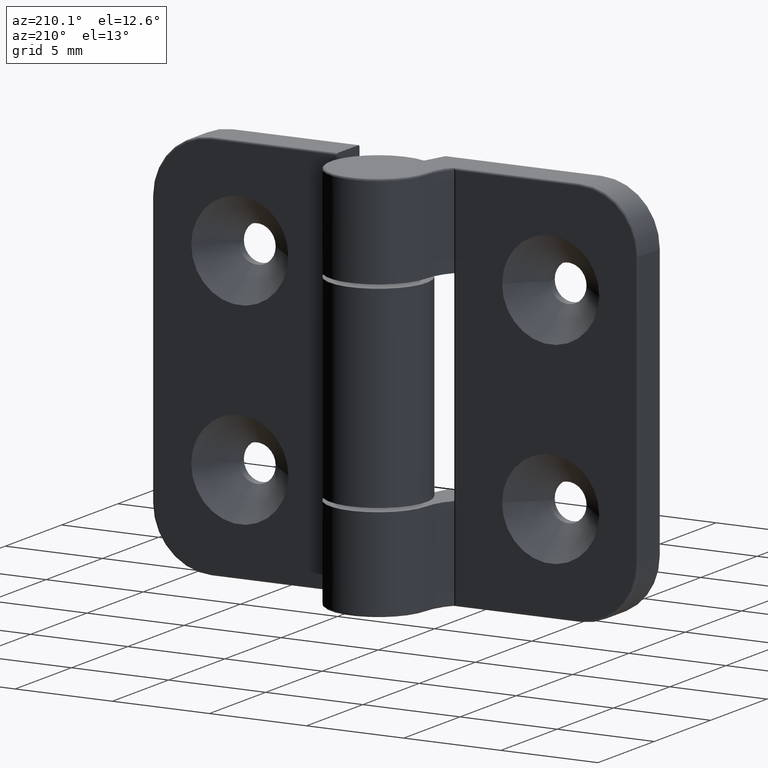
[diagram: clean part render]
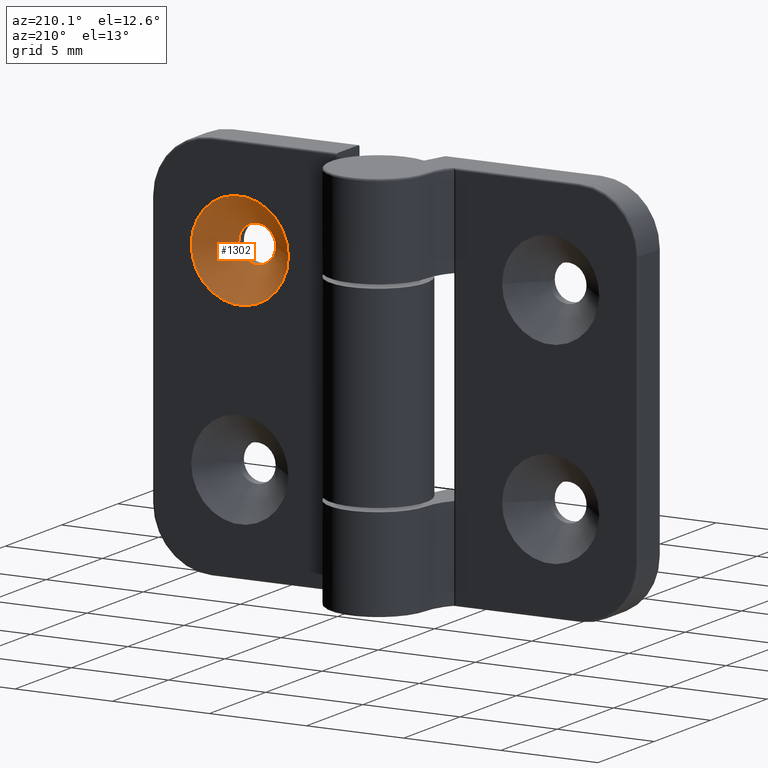
[diagram: same view with one face highlighted and labeled with its STEP entity id]
A machine part, auxiliary view. The second image highlights one B-rep face of the part: STEP entity #1302.
In plain terms, the highlighted conical surface has half-angle 45 deg.
Its self-contained STEP definition (entity closure, byte-faithful):
#38=CONICAL_SURFACE('',#1478,1.725,45.);
#76=FACE_BOUND('',#288,.T.);
#184=FACE_OUTER_BOUND('',#287,.T.);
#287=EDGE_LOOP('',(#1174));
#288=EDGE_LOOP('',(#1175));
#536=CIRCLE('',#1468,2.5);
#540=CIRCLE('',#1479,0.95);
#650=VERTEX_POINT('',#2353);
#654=VERTEX_POINT('',#2371);
#824=EDGE_CURVE('',#650,#650,#536,.T.);
#831=EDGE_CURVE('',#654,#654,#540,.T.);
#1174=ORIENTED_EDGE('',*,*,#824,.F.);
#1175=ORIENTED_EDGE('',*,*,#831,.F.);
#1302=ADVANCED_FACE('',(#184,#76),#38,.F.);
#1468=AXIS2_PLACEMENT_3D('',#2354,#1878,#1879);
#1478=AXIS2_PLACEMENT_3D('',#2370,#1901,#1902);
#1479=AXIS2_PLACEMENT_3D('',#2372,#1903,#1904);
#1878=DIRECTION('center_axis',(0.,-1.,0.));
#1879=DIRECTION('ref_axis',(1.,0.,0.));
#1901=DIRECTION('center_axis',(0.,1.,0.));
#1902=DIRECTION('ref_axis',(1.,0.,0.));
#1903=DIRECTION('center_axis',(0.,1.,0.));
#1904=DIRECTION('ref_axis',(1.,0.,0.));
#2353=CARTESIAN_POINT('',(-5.5,2.,-5.));
#2354=CARTESIAN_POINT('Origin',(-8.,2.,-5.));
#2370=CARTESIAN_POINT('Origin',(-8.,1.225,-5.));
#2371=CARTESIAN_POINT('',(-7.05,0.45,-5.));
#2372=CARTESIAN_POINT('Origin',(-8.,0.45,-5.));